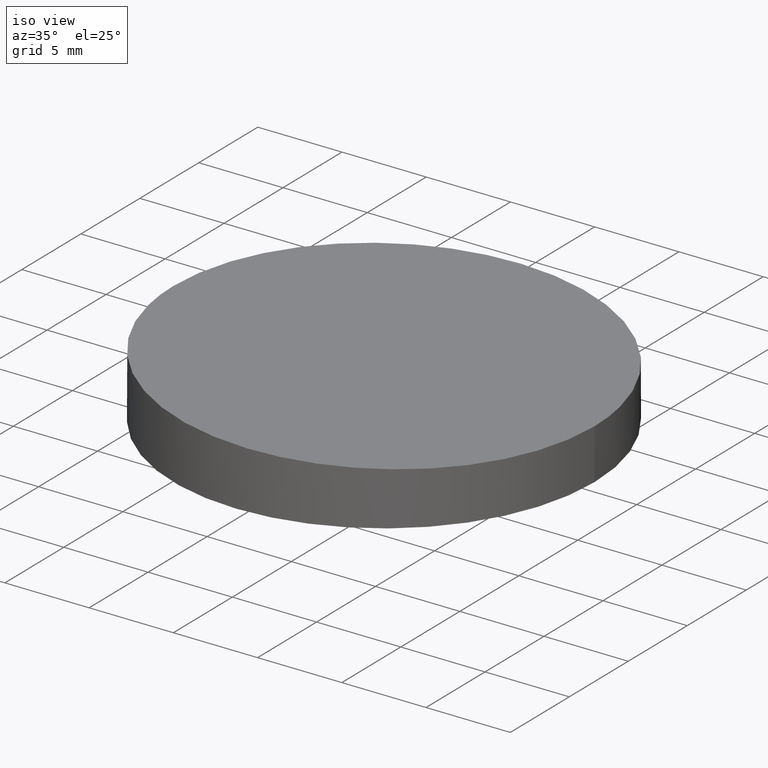
[diagram: clean part render]
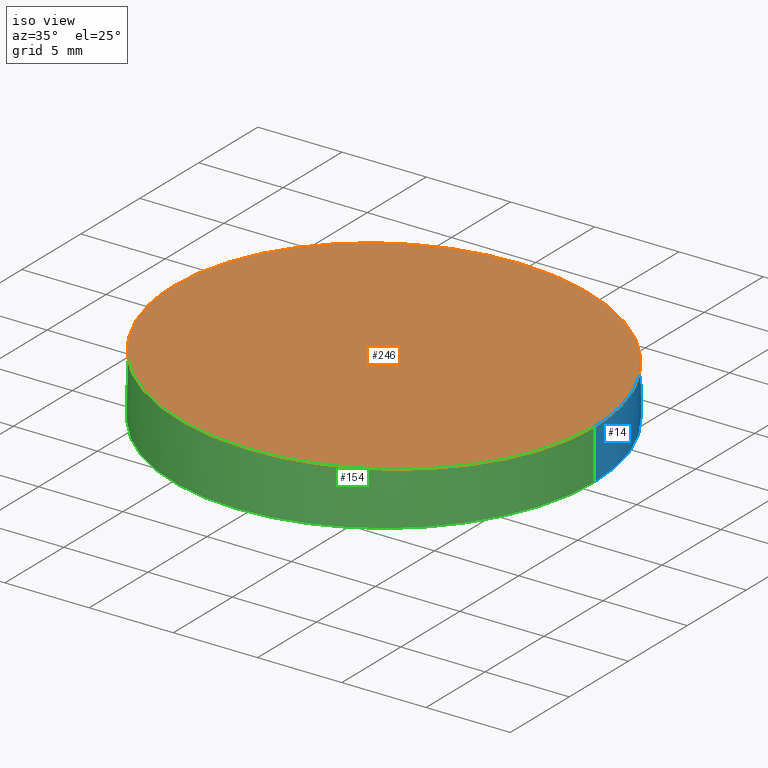
[diagram: same view with three faces highlighted in distinct colors, each labeled with its STEP entity id]
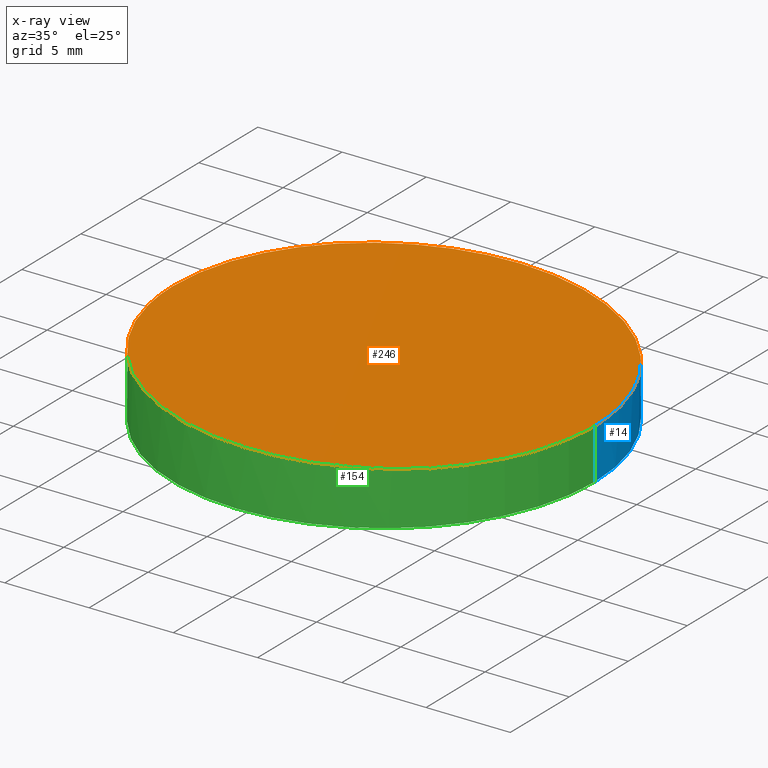
[diagram: x-ray of the same camera — body ghosted, the three highlighted faces saturated]
A machine part, iso view with three faces highlighted in distinct colors.
The next image is the same camera in x-ray (body ghosted, the three faces saturated) — at least one of them is partly hidden behind the body in this view.
Their STEP definitions:

[orange] entity #246 — the highlighted planar face has unit normal (-0.0337, 0, -0.9994).
#28 = CARTESIAN_POINT ( 'NONE',  ( 12.50000000000000000, 24.99999999999998900, 3.000000000000000400 ) ) ;
#45 = CARTESIAN_POINT ( 'NONE',  ( 12.49999999999999600, 1.530808498934191100E-015, 3.000000000000000000 ) ) ;
#48 = CARTESIAN_POINT ( 'NONE',  ( -12.49999999999999600, 0.0000000000000000000, 3.842440018503553700 ) ) ;
#50 = PLANE ( 'NONE',  #124 ) ;
#62 = EDGE_CURVE ( 'NONE', #200, #164, #65, .T. ) ;
#65 =( BOUNDED_CURVE ( )  B_SPLINE_CURVE ( 3, ( #209, #207, #185, #244 ),
 .UNSPECIFIED., .F., .F. ) 
 B_SPLINE_CURVE_WITH_KNOTS ( ( 4, 4 ),
 ( 0.0000000000000000000, 3.141592653589793100 ),
 .UNSPECIFIED. ) 
 CURVE ( )  GEOMETRIC_REPRESENTATION_ITEM ( )  RATIONAL_B_SPLINE_CURVE ( ( 1.000000000000000000, 0.3333333333333333700, 0.3333333333333333700, 1.000000000000000000 ) ) 
 REPRESENTATION_ITEM ( '' )  );
#73 = ORIENTED_EDGE ( 'NONE', *, *, #62, .F. ) ;
#89 = CARTESIAN_POINT ( 'NONE',  ( -12.50000000000000500, 24.99999999999998900, 3.842440018503554500 ) ) ;
#106 = ORIENTED_EDGE ( 'NONE', *, *, #196, .F. ) ;
#116 = DIRECTION ( 'NONE',  ( -0.03367848472911320900, 0.0000000000000000000, -0.9994327189292688800 ) ) ;
#124 = AXIS2_PLACEMENT_3D ( 'NONE', #187, #116, #232 ) ;
#142 = FACE_OUTER_BOUND ( 'NONE', #175, .T. ) ;
#144 =( BOUNDED_CURVE ( )  B_SPLINE_CURVE ( 3, ( #48, #89, #28, #45 ),
 .UNSPECIFIED., .F., .F. ) 
 B_SPLINE_CURVE_WITH_KNOTS ( ( 4, 4 ),
 ( 3.141592653589793100, 6.283185307179586200 ),
 .UNSPECIFIED. ) 
 CURVE ( )  GEOMETRIC_REPRESENTATION_ITEM ( )  RATIONAL_B_SPLINE_CURVE ( ( 1.000000000000000000, 0.3333333333333333700, 0.3333333333333333700, 1.000000000000000000 ) ) 
 REPRESENTATION_ITEM ( '' )  );
#164 = VERTEX_POINT ( 'NONE', #204 ) ;
#175 = EDGE_LOOP ( 'NONE', ( #106, #73 ) ) ;
#185 = CARTESIAN_POINT ( 'NONE',  ( -12.50000000000000000, -24.99999999999998900, 3.842440018503554500 ) ) ;
#187 = CARTESIAN_POINT ( 'NONE',  ( 12.49999999999999600, -25.00000000000000000, 3.000000000000000000 ) ) ;
#196 = EDGE_CURVE ( 'NONE', #164, #200, #144, .T. ) ;
#200 = VERTEX_POINT ( 'NONE', #243 ) ;
#204 = CARTESIAN_POINT ( 'NONE',  ( -12.49999999999999600, 0.0000000000000000000, 3.842440018503553700 ) ) ;
#207 = CARTESIAN_POINT ( 'NONE',  ( 12.50000000000000000, -24.99999999999998900, 3.000000000000000400 ) ) ;
#209 = CARTESIAN_POINT ( 'NONE',  ( 12.49999999999999600, 1.530808498934191100E-015, 3.000000000000000000 ) ) ;
#232 = DIRECTION ( 'NONE',  ( -0.9994327189292688800, 0.0000000000000000000, 0.03367848472911320900 ) ) ;
#243 = CARTESIAN_POINT ( 'NONE',  ( 12.49999999999999600, 1.530808498934191100E-015, 3.000000000000000000 ) ) ;
#244 = CARTESIAN_POINT ( 'NONE',  ( -12.49999999999999600, 0.0000000000000000000, 3.842440018503553700 ) ) ;
#246 = ADVANCED_FACE ( 'NONE', ( #142 ), #50, .F. ) ;

[blue] entity #14 — the highlighted cylindrical surface (partial cylindrical patch) has radius 12.5 mm, axis along (-0, -0, -1).
#1 = EDGE_CURVE ( 'NONE', #200, #226, #167, .T. ) ;
#9 = CARTESIAN_POINT ( 'NONE',  ( 12.49999999999999600, 1.530808498934191100E-015, 0.0000000000000000000 ) ) ;
#14 = ADVANCED_FACE ( 'NONE', ( #211 ), #110, .T. ) ;
#17 = ORIENTED_EDGE ( 'NONE', *, *, #217, .F. ) ;
#23 = VECTOR ( 'NONE', #149, 1000.000000000000000 ) ;
#25 = CARTESIAN_POINT ( 'NONE',  ( -12.49999999999999600, 0.0000000000000000000, 0.0000000000000000000 ) ) ;
#28 = CARTESIAN_POINT ( 'NONE',  ( 12.50000000000000000, 24.99999999999998900, 3.000000000000000400 ) ) ;
#45 = CARTESIAN_POINT ( 'NONE',  ( 12.49999999999999600, 1.530808498934191100E-015, 3.000000000000000000 ) ) ;
#48 = CARTESIAN_POINT ( 'NONE',  ( -12.49999999999999600, 0.0000000000000000000, 3.842440018503553700 ) ) ;
#53 = VERTEX_POINT ( 'NONE', #25 ) ;
#69 = DIRECTION ( 'NONE',  ( -0.0000000000000000000, -0.0000000000000000000, -1.000000000000000000 ) ) ;
#70 = CARTESIAN_POINT ( 'NONE',  ( 12.49999999999999600, 1.530808498934191100E-015, 10.00000000000000000 ) ) ;
#72 = CARTESIAN_POINT ( 'NONE',  ( 0.0000000000000000000, 0.0000000000000000000, 10.00000000000000000 ) ) ;
#78 = CARTESIAN_POINT ( 'NONE',  ( 0.0000000000000000000, 0.0000000000000000000, 0.0000000000000000000 ) ) ;
#84 = EDGE_LOOP ( 'NONE', ( #241, #118, #252, #17 ) ) ;
#88 = CARTESIAN_POINT ( 'NONE',  ( -12.49999999999999600, 0.0000000000000000000, 10.00000000000000000 ) ) ;
#89 = CARTESIAN_POINT ( 'NONE',  ( -12.50000000000000500, 24.99999999999998900, 3.842440018503554500 ) ) ;
#90 = DIRECTION ( 'NONE',  ( -1.000000000000000000, 0.0000000000000000000, 0.0000000000000000000 ) ) ;
#101 = AXIS2_PLACEMENT_3D ( 'NONE', #72, #69, #90 ) ;
#110 = CYLINDRICAL_SURFACE ( 'NONE', #101, 12.49999999999999600 ) ;
#118 = ORIENTED_EDGE ( 'NONE', *, *, #1, .T. ) ;
#131 = DIRECTION ( 'NONE',  ( -0.0000000000000000000, -0.0000000000000000000, -1.000000000000000000 ) ) ;
#144 =( BOUNDED_CURVE ( )  B_SPLINE_CURVE ( 3, ( #48, #89, #28, #45 ),
 .UNSPECIFIED., .F., .F. ) 
 B_SPLINE_CURVE_WITH_KNOTS ( ( 4, 4 ),
 ( 3.141592653589793100, 6.283185307179586200 ),
 .UNSPECIFIED. ) 
 CURVE ( )  GEOMETRIC_REPRESENTATION_ITEM ( )  RATIONAL_B_SPLINE_CURVE ( ( 1.000000000000000000, 0.3333333333333333700, 0.3333333333333333700, 1.000000000000000000 ) ) 
 REPRESENTATION_ITEM ( '' )  );
#149 = DIRECTION ( 'NONE',  ( -0.0000000000000000000, -0.0000000000000000000, -1.000000000000000000 ) ) ;
#156 = DIRECTION ( 'NONE',  ( 0.0000000000000000000, 0.0000000000000000000, 1.000000000000000000 ) ) ;
#163 = CIRCLE ( 'NONE', #168, 12.49999999999999600 ) ;
#164 = VERTEX_POINT ( 'NONE', #204 ) ;
#167 = LINE ( 'NONE', #70, #23 ) ;
#168 = AXIS2_PLACEMENT_3D ( 'NONE', #78, #156, #192 ) ;
#179 = LINE ( 'NONE', #88, #216 ) ;
#192 = DIRECTION ( 'NONE',  ( 1.000000000000000000, 0.0000000000000000000, 0.0000000000000000000 ) ) ;
#196 = EDGE_CURVE ( 'NONE', #164, #200, #144, .T. ) ;
#200 = VERTEX_POINT ( 'NONE', #243 ) ;
#204 = CARTESIAN_POINT ( 'NONE',  ( -12.49999999999999600, 0.0000000000000000000, 3.842440018503553700 ) ) ;
#211 = FACE_OUTER_BOUND ( 'NONE', #84, .T. ) ;
#216 = VECTOR ( 'NONE', #131, 1000.000000000000000 ) ;
#217 = EDGE_CURVE ( 'NONE', #164, #53, #179, .T. ) ;
#226 = VERTEX_POINT ( 'NONE', #9 ) ;
#240 = EDGE_CURVE ( 'NONE', #226, #53, #163, .T. ) ;
#241 = ORIENTED_EDGE ( 'NONE', *, *, #196, .T. ) ;
#243 = CARTESIAN_POINT ( 'NONE',  ( 12.49999999999999600, 1.530808498934191100E-015, 3.000000000000000000 ) ) ;
#252 = ORIENTED_EDGE ( 'NONE', *, *, #240, .T. ) ;

[green] entity #154 — the highlighted cylindrical surface (partial cylindrical patch) has radius 12.5 mm, axis along (-0, -0, -1).
#1 = EDGE_CURVE ( 'NONE', #200, #226, #167, .T. ) ;
#5 = DIRECTION ( 'NONE',  ( -0.0000000000000000000, -0.0000000000000000000, -1.000000000000000000 ) ) ;
#8 = EDGE_CURVE ( 'NONE', #53, #226, #121, .T. ) ;
#9 = CARTESIAN_POINT ( 'NONE',  ( 12.49999999999999600, 1.530808498934191100E-015, 0.0000000000000000000 ) ) ;
#23 = VECTOR ( 'NONE', #149, 1000.000000000000000 ) ;
#25 = CARTESIAN_POINT ( 'NONE',  ( -12.49999999999999600, 0.0000000000000000000, 0.0000000000000000000 ) ) ;
#27 = DIRECTION ( 'NONE',  ( 0.0000000000000000000, 0.0000000000000000000, 1.000000000000000000 ) ) ;
#37 = AXIS2_PLACEMENT_3D ( 'NONE', #47, #27, #228 ) ;
#47 = CARTESIAN_POINT ( 'NONE',  ( 0.0000000000000000000, 0.0000000000000000000, 0.0000000000000000000 ) ) ;
#53 = VERTEX_POINT ( 'NONE', #25 ) ;
#60 = AXIS2_PLACEMENT_3D ( 'NONE', #112, #5, #128 ) ;
#62 = EDGE_CURVE ( 'NONE', #200, #164, #65, .T. ) ;
#65 =( BOUNDED_CURVE ( )  B_SPLINE_CURVE ( 3, ( #209, #207, #185, #244 ),
 .UNSPECIFIED., .F., .F. ) 
 B_SPLINE_CURVE_WITH_KNOTS ( ( 4, 4 ),
 ( 0.0000000000000000000, 3.141592653589793100 ),
 .UNSPECIFIED. ) 
 CURVE ( )  GEOMETRIC_REPRESENTATION_ITEM ( )  RATIONAL_B_SPLINE_CURVE ( ( 1.000000000000000000, 0.3333333333333333700, 0.3333333333333333700, 1.000000000000000000 ) ) 
 REPRESENTATION_ITEM ( '' )  );
#68 = ORIENTED_EDGE ( 'NONE', *, *, #62, .T. ) ;
#70 = CARTESIAN_POINT ( 'NONE',  ( 12.49999999999999600, 1.530808498934191100E-015, 10.00000000000000000 ) ) ;
#81 = ORIENTED_EDGE ( 'NONE', *, *, #1, .F. ) ;
#88 = CARTESIAN_POINT ( 'NONE',  ( -12.49999999999999600, 0.0000000000000000000, 10.00000000000000000 ) ) ;
#112 = CARTESIAN_POINT ( 'NONE',  ( 0.0000000000000000000, 0.0000000000000000000, 10.00000000000000000 ) ) ;
#121 = CIRCLE ( 'NONE', #37, 12.49999999999999600 ) ;
#127 = EDGE_LOOP ( 'NONE', ( #81, #68, #139, #220 ) ) ;
#128 = DIRECTION ( 'NONE',  ( -1.000000000000000000, 0.0000000000000000000, 0.0000000000000000000 ) ) ;
#130 = CYLINDRICAL_SURFACE ( 'NONE', #60, 12.49999999999999600 ) ;
#131 = DIRECTION ( 'NONE',  ( -0.0000000000000000000, -0.0000000000000000000, -1.000000000000000000 ) ) ;
#139 = ORIENTED_EDGE ( 'NONE', *, *, #217, .T. ) ;
#149 = DIRECTION ( 'NONE',  ( -0.0000000000000000000, -0.0000000000000000000, -1.000000000000000000 ) ) ;
#154 = ADVANCED_FACE ( 'NONE', ( #201 ), #130, .T. ) ;
#164 = VERTEX_POINT ( 'NONE', #204 ) ;
#167 = LINE ( 'NONE', #70, #23 ) ;
#179 = LINE ( 'NONE', #88, #216 ) ;
#185 = CARTESIAN_POINT ( 'NONE',  ( -12.50000000000000000, -24.99999999999998900, 3.842440018503554500 ) ) ;
#200 = VERTEX_POINT ( 'NONE', #243 ) ;
#201 = FACE_OUTER_BOUND ( 'NONE', #127, .T. ) ;
#204 = CARTESIAN_POINT ( 'NONE',  ( -12.49999999999999600, 0.0000000000000000000, 3.842440018503553700 ) ) ;
#207 = CARTESIAN_POINT ( 'NONE',  ( 12.50000000000000000, -24.99999999999998900, 3.000000000000000400 ) ) ;
#209 = CARTESIAN_POINT ( 'NONE',  ( 12.49999999999999600, 1.530808498934191100E-015, 3.000000000000000000 ) ) ;
#216 = VECTOR ( 'NONE', #131, 1000.000000000000000 ) ;
#217 = EDGE_CURVE ( 'NONE', #164, #53, #179, .T. ) ;
#220 = ORIENTED_EDGE ( 'NONE', *, *, #8, .T. ) ;
#226 = VERTEX_POINT ( 'NONE', #9 ) ;
#228 = DIRECTION ( 'NONE',  ( 1.000000000000000000, 0.0000000000000000000, 0.0000000000000000000 ) ) ;
#243 = CARTESIAN_POINT ( 'NONE',  ( 12.49999999999999600, 1.530808498934191100E-015, 3.000000000000000000 ) ) ;
#244 = CARTESIAN_POINT ( 'NONE',  ( -12.49999999999999600, 0.0000000000000000000, 3.842440018503553700 ) ) ;